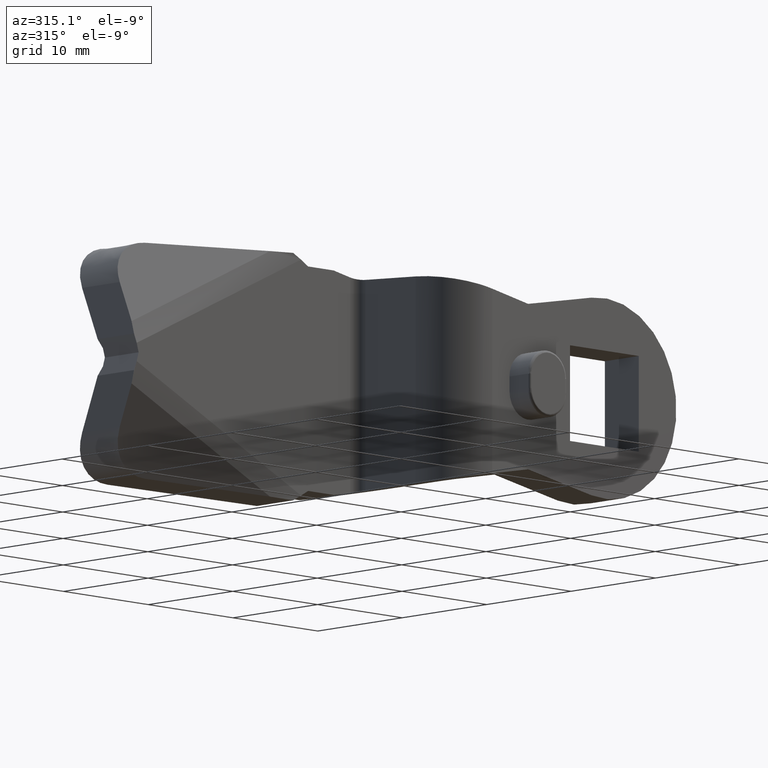
[diagram: clean part render]
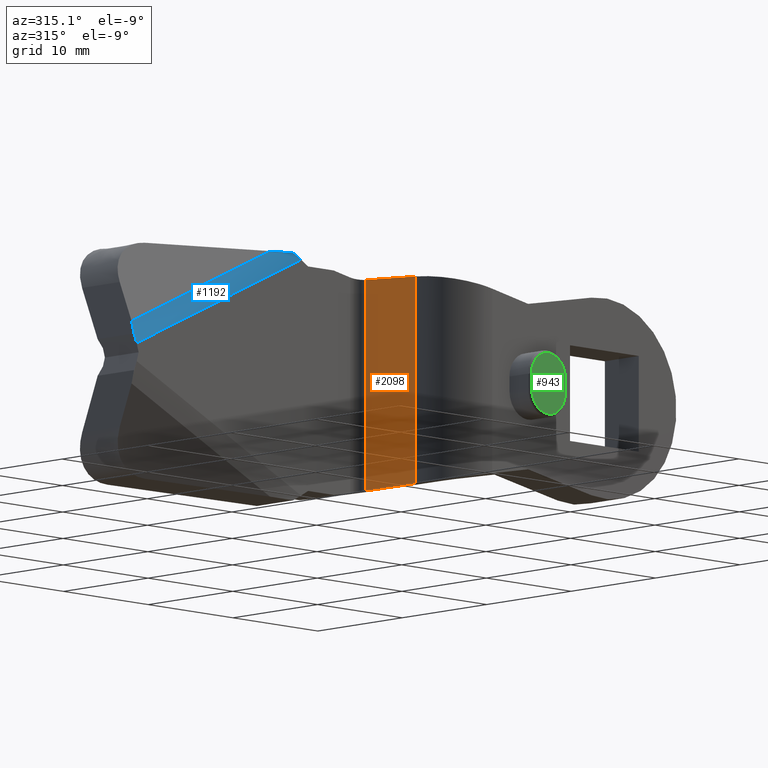
[diagram: same view with three faces highlighted in distinct colors, each labeled with its STEP entity id]
A machine part, auxiliary view with three faces highlighted in distinct colors.
Their STEP definitions:

[orange] entity #2098 — the highlighted face is a freeform B-spline surface patch.
#613=CARTESIAN_POINT('',(-18.163896094946299,-9.868241088332969,8.762287960841819));
#614=VERTEX_POINT('',#613);
#630=CARTESIAN_POINT('',(-18.163896094946299,-9.868241088332990,-8.762287960841761));
#631=VERTEX_POINT('',#630);
#632=CARTESIAN_POINT('',(-18.163896094946299,-9.868241088332990,-8.762287960841761));
#633=CARTESIAN_POINT('',(-18.163896094946299,-9.868241088332969,8.762287960841819));
#634=QUASI_UNIFORM_CURVE('',1,(#632,#633),.UNSPECIFIED.,.F.,.U.);
#635=EDGE_CURVE('',#631,#614,#634,.T.);
#676=CARTESIAN_POINT('',(-19.052917172784401,-4.826352012323080,8.933253552733751));
#677=VERTEX_POINT('',#676);
#698=CARTESIAN_POINT('',(-19.052917172784401,-4.826352012323089,-8.933253552733691));
#699=VERTEX_POINT('',#698);
#713=CARTESIAN_POINT('',(-19.052917172784401,-4.826352012323080,8.933253552733751));
#714=CARTESIAN_POINT('',(-19.052917172784401,-4.826352012323089,-8.933253552733691));
#715=QUASI_UNIFORM_CURVE('',1,(#713,#714),.UNSPECIFIED.,.F.,.U.);
#716=EDGE_CURVE('',#677,#699,#715,.T.);
#1695=CARTESIAN_POINT('',(-19.052917172784401,-4.826352012323089,-8.933253552733691));
#1696=CARTESIAN_POINT('',(-18.163896094946299,-9.868241088332990,-8.762287960841761));
#1697=QUASI_UNIFORM_CURVE('',1,(#1695,#1696),.UNSPECIFIED.,.F.,.U.);
#1698=EDGE_CURVE('',#699,#631,#1697,.T.);
#1737=CARTESIAN_POINT('',(-18.163896094946299,-9.868241088332969,8.762287960841819));
#1738=CARTESIAN_POINT('',(-19.052917172784401,-4.826352012323080,8.933253552733751));
#1739=QUASI_UNIFORM_CURVE('',1,(#1737,#1738),.UNSPECIFIED.,.F.,.U.);
#1740=EDGE_CURVE('',#614,#677,#1739,.T.);
#2087=CARTESIAN_POINT('',(-19.097323765553831,-4.574509710078194,-9.825685316473331));
#2088=CARTESIAN_POINT('',(-18.119489470383030,-10.120083570889889,-9.825685316473331));
#2089=CARTESIAN_POINT('',(-19.097323765553831,-4.574509710078194,9.825684677517307));
#2090=CARTESIAN_POINT('',(-18.119489470383030,-10.120083570889889,9.825684677517307));
#2091=B_SPLINE_SURFACE_WITH_KNOTS('',1,1,((#2087,#2089),(#2088,#2090)),.UNSPECIFIED.,.F.,.F.,.U.,(2,2),(2,2),(0.0,5.631123276445837),(0.0,19.651369993990642),.UNSPECIFIED.);
#2092=ORIENTED_EDGE('',*,*,#1698,.T.);
#2093=ORIENTED_EDGE('',*,*,#635,.T.);
#2094=ORIENTED_EDGE('',*,*,#1740,.T.);
#2095=ORIENTED_EDGE('',*,*,#716,.T.);
#2096=EDGE_LOOP('',(#2092,#2093,#2094,#2095));
#2097=FACE_OUTER_BOUND('',#2096,.T.);
#2098=ADVANCED_FACE('',(#2097),#2091,.T.);

[blue] entity #1192 — the highlighted face is a freeform B-spline surface patch.
#1102=CARTESIAN_POINT('',(-26.146194799256662,-3.548282235897147,11.882714341905450));
#1103=CARTESIAN_POINT('',(-46.519316861842000,-3.548282235897147,2.205481362179874));
#1104=CARTESIAN_POINT('',(-25.755430227935943,-4.022240368432062,11.060052086493199));
#1105=CARTESIAN_POINT('',(-46.128552290521291,-4.022240368432064,1.382819106767623));
#1106=CARTESIAN_POINT('',(-25.315032077525778,-3.998972883112030,10.132898085629471));
#1107=CARTESIAN_POINT('',(-45.688154140111124,-3.998972883112034,0.455665105903896));
#1115=(BOUNDED_SURFACE()B_SPLINE_SURFACE(1,2,((#1102,#1104,#1106),(#1103,#1105,#1107)),.UNSPECIFIED.,.F.,.F.,.U.)B_SPLINE_SURFACE_WITH_KNOTS((2,2),(3,3),(0.0,22.554665608713648),(0.0,2.020640691566786),.UNSPECIFIED.)GEOMETRIC_REPRESENTATION_ITEM()RATIONAL_B_SPLINE_SURFACE(((0.997532545724824,0.963878783838132,0.992719961769781),(0.997532545724824,0.963878783838132,0.992719961769781)))REPRESENTATION_ITEM('')SURFACE());
#1116=CARTESIAN_POINT('',(-29.101330966022299,-3.589033668687000,10.389891029633000));
#1117=VERTEX_POINT('',#1116);
#1118=CARTESIAN_POINT('',(-26.677422310739448,-3.919693638437140,10.469013167013120));
#1119=VERTEX_POINT('',#1118);
#1120=CARTESIAN_POINT('',(-29.101330966022299,-3.589033668686998,10.389891029633000));
#1121=CARTESIAN_POINT('',(-27.942747174768829,-3.816827052877727,10.427709957214351));
#1122=CARTESIAN_POINT('',(-26.677422310739448,-3.919693638437140,10.469013167013120));
#1130=(BOUNDED_CURVE()B_SPLINE_CURVE(2,(#1120,#1121,#1122),.UNSPECIFIED.,.F.,.U.)CURVE()GEOMETRIC_REPRESENTATION_ITEM()QUASI_UNIFORM_CURVE()RATIONAL_B_SPLINE_CURVE((1.0,0.991783610846496,1.0))REPRESENTATION_ITEM(''));
#1131=EDGE_CURVE('',#1117,#1119,#1130,.T.);
#1132=ORIENTED_EDGE('',*,*,#1131,.F.);
#1133=CARTESIAN_POINT('',(-45.422700162126702,-3.589033668687000,2.637240661485390));
#1134=VERTEX_POINT('',#1133);
#1135=CARTESIAN_POINT('',(-45.422700162126702,-3.589033668687000,2.637240661485390));
#1136=CARTESIAN_POINT('',(-29.101330966022299,-3.589033668687000,10.389891029633000));
#1137=QUASI_UNIFORM_CURVE('',1,(#1135,#1136),.UNSPECIFIED.,.F.,.U.);
#1138=EDGE_CURVE('',#1134,#1117,#1137,.T.);
#1139=ORIENTED_EDGE('',*,*,#1138,.F.);
#1140=CARTESIAN_POINT('',(-45.460283177382600,-3.919693638437140,1.547154255351760));
#1141=VERTEX_POINT('',#1140);
#1142=CARTESIAN_POINT('',(-45.460283177382600,-3.919693638437140,1.547154255351760));
#1143=CARTESIAN_POINT('',(-45.440664152732758,-3.816827052939998,2.116199392543504));
#1144=CARTESIAN_POINT('',(-45.422700162126681,-3.589033668687001,2.637240661485389));
#1152=(BOUNDED_CURVE()B_SPLINE_CURVE(2,(#1142,#1143,#1144),.UNSPECIFIED.,.F.,.U.)CURVE()GEOMETRIC_REPRESENTATION_ITEM()QUASI_UNIFORM_CURVE()RATIONAL_B_SPLINE_CURVE((1.0,0.991783610842067,1.0))REPRESENTATION_ITEM(''));
#1153=EDGE_CURVE('',#1141,#1134,#1152,.T.);
#1154=ORIENTED_EDGE('',*,*,#1153,.F.);
#1155=CARTESIAN_POINT('',(-45.230142670143103,-4.000000189989685,0.773577170564547));
#1156=VERTEX_POINT('',#1155);
#1157=CARTESIAN_POINT('',(-45.230142670143103,-4.000000189989684,0.773577170564543));
#1158=CARTESIAN_POINT('',(-45.346379748628998,-4.000000189989684,1.164287790775973));
#1159=CARTESIAN_POINT('',(-45.460283177382600,-3.919693638437140,1.547154255351760));
#1167=(BOUNDED_CURVE()B_SPLINE_CURVE(2,(#1157,#1158,#1159),.UNSPECIFIED.,.F.,.U.)CURVE()GEOMETRIC_REPRESENTATION_ITEM()QUASI_UNIFORM_CURVE()RATIONAL_B_SPLINE_CURVE((1.0,0.994968180929828,1.0))REPRESENTATION_ITEM(''));
#1168=EDGE_CURVE('',#1156,#1141,#1167,.T.);
#1169=ORIENTED_EDGE('',*,*,#1168,.F.);
#1170=CARTESIAN_POINT('',(-25.838711795582402,-4.000000189989685,9.984506835978541));
#1171=VERTEX_POINT('',#1170);
#1172=CARTESIAN_POINT('',(-25.838711795582402,-4.000000189989685,9.984506835978541));
#1173=CARTESIAN_POINT('',(-45.230142670143103,-4.000000189989685,0.773577170564547));
#1174=QUASI_UNIFORM_CURVE('',1,(#1172,#1173),.UNSPECIFIED.,.F.,.U.);
#1175=EDGE_CURVE('',#1171,#1156,#1174,.T.);
#1176=ORIENTED_EDGE('',*,*,#1175,.F.);
#1177=CARTESIAN_POINT('',(-26.677422310739448,-3.919693638437140,10.469013167013120));
#1178=CARTESIAN_POINT('',(-26.262319361150308,-4.000000189989685,10.229216474981188));
#1179=CARTESIAN_POINT('',(-25.838711795582402,-4.000000189989684,9.984506835978541));
#1187=(BOUNDED_CURVE()B_SPLINE_CURVE(2,(#1177,#1178,#1179),.UNSPECIFIED.,.F.,.U.)CURVE()GEOMETRIC_REPRESENTATION_ITEM()QUASI_UNIFORM_CURVE()RATIONAL_B_SPLINE_CURVE((1.0,0.994968180926371,1.0))REPRESENTATION_ITEM(''));
#1188=EDGE_CURVE('',#1119,#1171,#1187,.T.);
#1189=ORIENTED_EDGE('',*,*,#1188,.F.);
#1190=EDGE_LOOP('',(#1132,#1139,#1154,#1169,#1176,#1189));
#1191=FACE_OUTER_BOUND('',#1190,.T.);
#1192=ADVANCED_FACE('',(#1191),#1115,.T.);

[green] entity #943 — the highlighted face is a freeform B-spline surface patch.
#313=CARTESIAN_POINT('',(-11.000000531971500,-16.400000189999950,-0.600000027954791));
#314=VERTEX_POINT('',#313);
#349=CARTESIAN_POINT('',(-7.000000322982700,-16.400000189999950,-0.600000028301551));
#350=VERTEX_POINT('',#349);
#364=CARTESIAN_POINT('',(-11.000000531971480,-16.400000189999950,-0.600000027954792));
#365=CARTESIAN_POINT('',(-11.000000532285382,-16.400000189999947,-1.754700626828492));
#366=CARTESIAN_POINT('',(-10.000000479981340,-16.400000189999950,-2.332050926413750));
#367=CARTESIAN_POINT('',(-9.000000427677293,-16.400000189999947,-2.909401225999009));
#368=CARTESIAN_POINT('',(-8.000000375273146,-16.400000189999950,-2.332050926587130));
#369=CARTESIAN_POINT('',(-7.000000322869000,-16.400000189999947,-1.754700627175250));
#370=CARTESIAN_POINT('',(-7.000000322982699,-16.400000189999950,-0.600000028301552));
#378=(BOUNDED_CURVE()B_SPLINE_CURVE(2,(#364,#365,#366,#367,#368,#369,#370),.UNSPECIFIED.,.F.,.U.)B_SPLINE_CURVE_WITH_KNOTS((3,2,2,3),(0.0,0.333333333333333,0.666666666666667,1.0),.UNSPECIFIED.)CURVE()GEOMETRIC_REPRESENTATION_ITEM()RATIONAL_B_SPLINE_CURVE((1.0,0.866025403753579,1.0,0.866025403753579,1.0,0.866025403753579,1.0))REPRESENTATION_ITEM(''));
#379=EDGE_CURVE('',#314,#350,#378,.T.);
#400=CARTESIAN_POINT('',(-7.000000322982700,-16.400000189999950,0.600000027954747));
#401=VERTEX_POINT('',#400);
#417=CARTESIAN_POINT('',(-7.000000322982700,-16.400000189999950,-0.600000028301551));
#418=CARTESIAN_POINT('',(-7.000000322982700,-16.400000189999950,0.600000027954747));
#419=QUASI_UNIFORM_CURVE('',1,(#417,#418),.UNSPECIFIED.,.F.,.U.);
#420=EDGE_CURVE('',#350,#401,#419,.T.);
#445=CARTESIAN_POINT('',(-11.000000531971500,-16.400000189999950,0.600000028498428));
#446=VERTEX_POINT('',#445);
#468=CARTESIAN_POINT('',(-11.000000531971500,-16.400000189999950,0.600000028498428));
#469=CARTESIAN_POINT('',(-11.000000531971500,-16.400000189999950,-0.600000027954791));
#470=QUASI_UNIFORM_CURVE('',1,(#468,#469),.UNSPECIFIED.,.F.,.U.);
#471=EDGE_CURVE('',#446,#314,#470,.T.);
#518=CARTESIAN_POINT('',(-7.000000322982695,-16.400000189999950,0.600000027954747));
#519=CARTESIAN_POINT('',(-7.000000322668800,-16.400000189999950,1.754700626784683));
#520=CARTESIAN_POINT('',(-8.000000374915997,-16.400000189999950,2.332050926380879));
#521=CARTESIAN_POINT('',(-9.000000427163196,-16.400000189999950,2.909401225977075));
#522=CARTESIAN_POINT('',(-10.000000479567341,-16.400000189999950,2.332050926652720));
#523=CARTESIAN_POINT('',(-11.000000531971484,-16.400000189999950,1.754700627328365));
#524=CARTESIAN_POINT('',(-11.000000531971480,-16.400000189999950,0.600000028498428));
#532=(BOUNDED_CURVE()B_SPLINE_CURVE(2,(#518,#519,#520,#521,#522,#523,#524),.UNSPECIFIED.,.F.,.U.)B_SPLINE_CURVE_WITH_KNOTS((3,2,2,3),(0.0,0.333333333333333,0.666666666666667,1.0),.UNSPECIFIED.)CURVE()GEOMETRIC_REPRESENTATION_ITEM()RATIONAL_B_SPLINE_CURVE((1.0,0.866025403761785,1.0,0.866025403761785,1.0,0.866025403761785,1.0))REPRESENTATION_ITEM(''));
#533=EDGE_CURVE('',#401,#446,#532,.T.);
#932=CARTESIAN_POINT('',(-11.199800970956581,-16.400000189999950,-2.859740185014134));
#933=CARTESIAN_POINT('',(-6.800200491965025,-16.400000189999950,-2.859740185014134));
#934=CARTESIAN_POINT('',(-11.199800970956581,-16.400000189999950,2.859740277997333));
#935=CARTESIAN_POINT('',(-6.800200491965025,-16.400000189999950,2.859740277997333));
#936=B_SPLINE_SURFACE_WITH_KNOTS('',1,1,((#932,#934),(#933,#935)),.UNSPECIFIED.,.F.,.F.,.U.,(2,2),(2,2),(0.0,4.399600478991559),(0.0,5.719480463011466),.UNSPECIFIED.);
#937=ORIENTED_EDGE('',*,*,#471,.T.);
#938=ORIENTED_EDGE('',*,*,#379,.T.);
#939=ORIENTED_EDGE('',*,*,#420,.T.);
#940=ORIENTED_EDGE('',*,*,#533,.T.);
#941=EDGE_LOOP('',(#937,#938,#939,#940));
#942=FACE_OUTER_BOUND('',#941,.T.);
#943=ADVANCED_FACE('',(#942),#936,.T.);